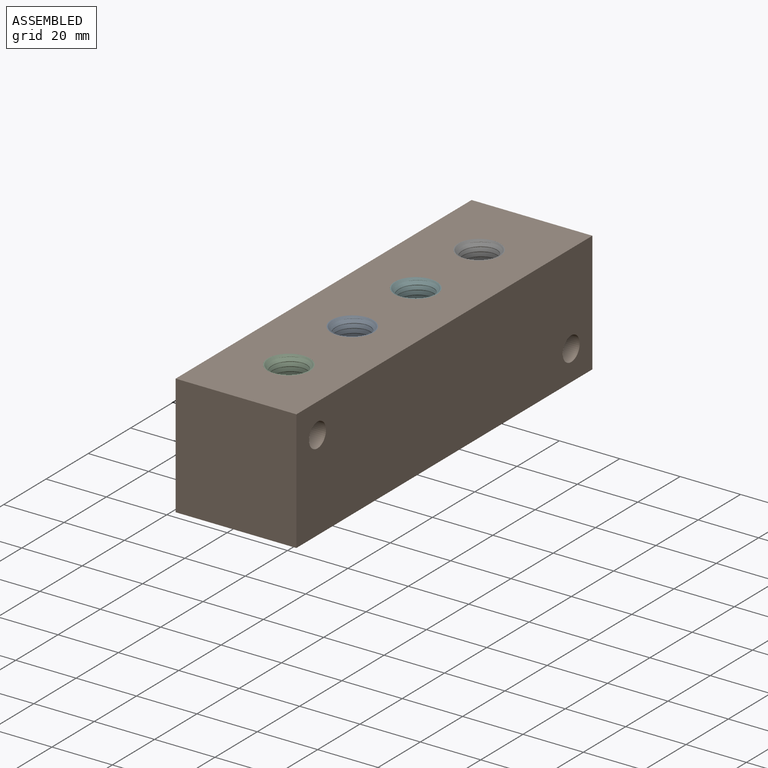
[diagram: assembled view]
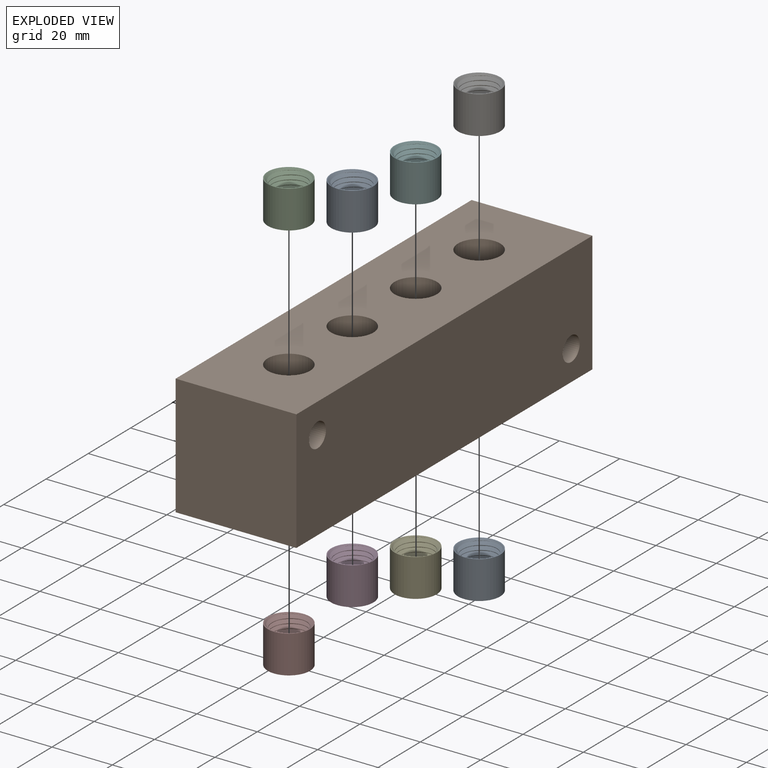
[diagram: exploded view]
GUIDED TOUR — MATED ASSEMBLY (Onshape document 51464a541ba9c10fd1314c73, AutoMate assembly 51464a541ba9c10fd1314c73_e3d22d9eac431a9dcffcccdf_4a49ec440293bae563754493_default)

This assembly has 9 components, labeled P0..P8 below (a component is one placed occurrence of a part; the same part can appear more than once), held together by 8 mates. A mate is a constraint between two components; its type names the relative motion it leaves free:
  CYLINDRICAL — leaves both rotation about and translation along the listed axis free.
Axis/direction vectors are unit vectors and 'through' points are millimeter coordinates, both in the assembly's world frame.

MATES
  1. CYLINDRICAL "Cylindrical 3": P1 <-> P3, axis (0.000, 0.000, -1.000) through (-0.03, -15.01, -19.99) mm
  2. CYLINDRICAL "Cylindrical 2": P1 <-> P4, axis (0.000, 0.000, -1.000) through (-0.03, 14.99, -19.99) mm
  3. CYLINDRICAL "Cylindrical 1": P1 <-> P0, axis (0.000, 0.000, -1.000) through (-0.03, 44.99, -19.99) mm
  4. CYLINDRICAL "Cylindrical 7": P5 <-> P1, axis (0.000, 0.000, 1.000) through (-0.03, 14.99, 20.01) mm
  5. CYLINDRICAL "Cylindrical 6": P8 <-> P1, axis (0.000, 0.000, 1.000) through (-0.03, -15.01, 20.01) mm
  6. CYLINDRICAL "Cylindrical 4": P7 <-> P1, axis (0.000, 0.000, -1.000) through (-0.03, -45.01, -19.99) mm
  7. CYLINDRICAL "Cylindrical 5": P2 <-> P1, axis (0.000, 0.000, 1.000) through (-0.03, -45.01, 20.01) mm
  8. CYLINDRICAL "Cylindrical 8": P6 <-> P1, axis (0.000, 0.000, 1.000) through (-0.03, 44.99, 20.01) mm

ASSEMBLY ORDER
  1. P1 — the base component [order heuristic]
  2. P0 [order heuristic]
  3. P2 [order heuristic]
  4. P3 [order heuristic]
  5. P4 [order heuristic]
  6. P5 [order heuristic]
  7. P6 [order heuristic]
  8. P7 [order heuristic]
  9. P8 [order heuristic]
Order-tag legend:
  [order heuristic] — this assembly is geometrically interlocked (no collision-free removal order exists), so components are listed in mate-graph order; insertion feasibility is not verified.

Of the 9 components, 1 carries the full construction recipe — the FeatureScript program that regenerates the part's solid from scratch; the rest are supplied as boundary geometry only.
Each toured component is shown spotlighted twice — in the assembled view, then in the exploded view, where a leader line traces a displaced component back to its assembled socket (saturated green if recipe-attached, orange if geometry-only; every other component desaturated gray) — followed by its recipe or geometry summary and the mates that hold it.
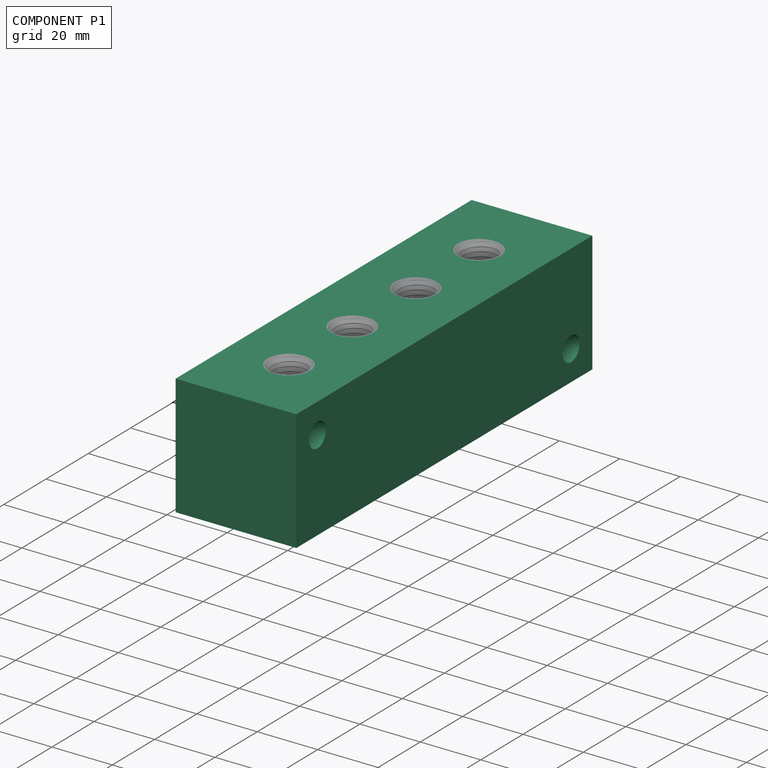
[diagram: component P1 — assembled]
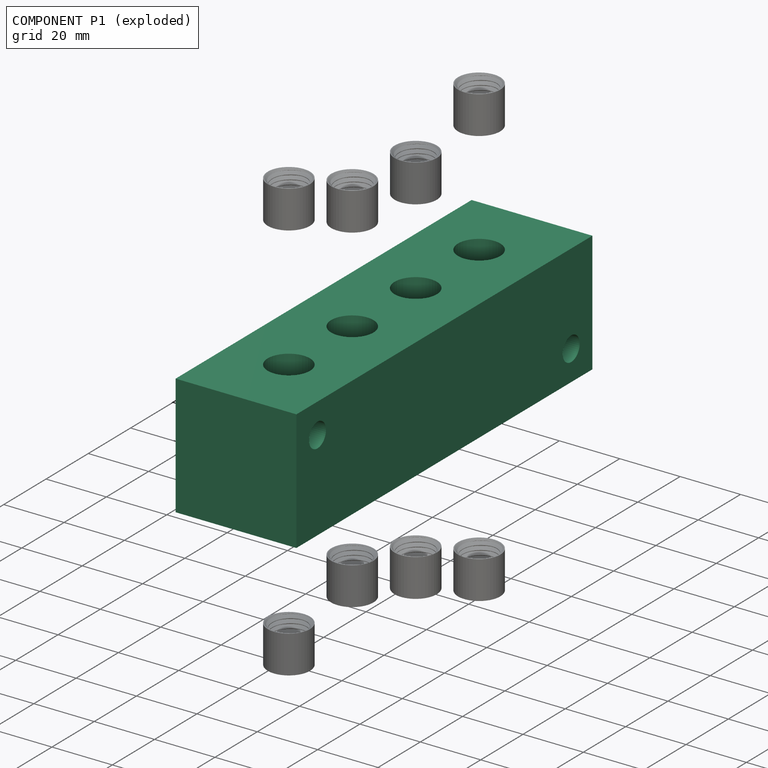
[diagram: component P1 — exploded]
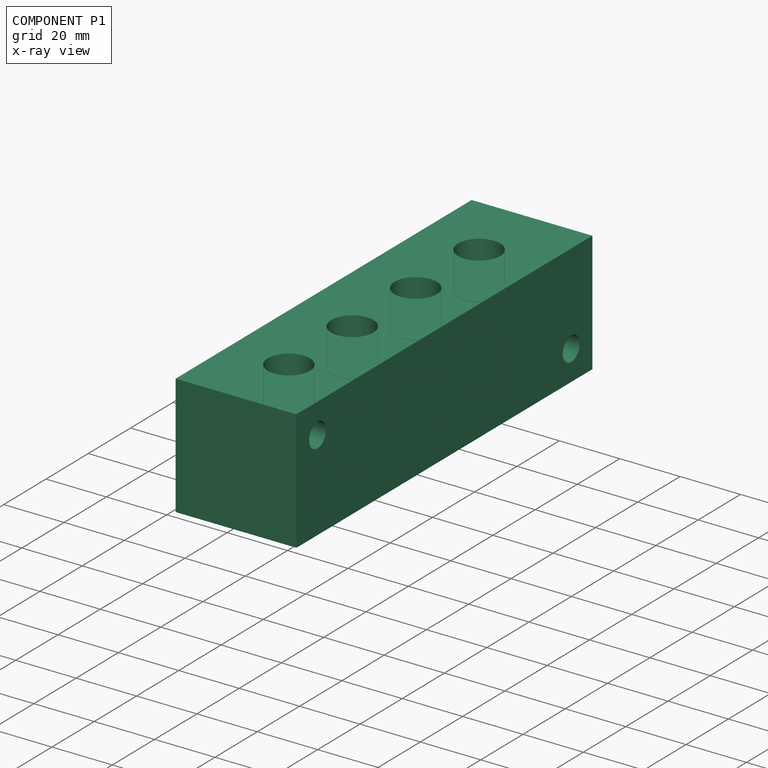
[diagram: component P1 — x-ray view]
COMPONENT P1 — recipe-attached (CADFS 00799438, mesh-verified: the recipe's output STEP matches this component's geometry to below the mesh-comparison resolution (tessellation chordal tolerance ~0.226 mm)).
Held by: CYLINDRICAL mate "Cylindrical 3" to P3; CYLINDRICAL mate "Cylindrical 2" to P4; CYLINDRICAL mate "Cylindrical 1" to P0; CYLINDRICAL mate "Cylindrical 7" to P5; CYLINDRICAL mate "Cylindrical 6" to P8; CYLINDRICAL mate "Cylindrical 4" to P7; CYLINDRICAL mate "Cylindrical 5" to P2; CYLINDRICAL mate "Cylindrical 8" to P6.
Construction recipe (FeatureScript — the CAD program that rebuilds this solid; sketch coordinates are in the units given by the * unit suffixes, e.g. mm):

FeatureScript 1511;
import(path : "onshape/std/geometry.fs", version : "1511.0");
import(path : "onshape/std/common.fs", version : "1511.0");
const mm = millimeter;
const VERTEX = EntityType.VERTEX;
const EDGE = EntityType.EDGE;
const FACE = EntityType.FACE;
const BODY = EntityType.BODY;
function v(x, y){return vector(x, y);}
function OD(order){return orderDisambiguation(order);}
function OSD(set){return originalSetDisambiguation(set);}
function TD(topology){return topologyDisambiguation(topology);}
function TDD(query){return trueDependencyDisambiguation(query);}
function sQuery(a, b, c) {return sketchEntityQuery(a, b, c);}

annotation { "Feature Type Name" : "Feature", "Feature Type Description" : "" }
export const myFeature = defineFeature(function(context is Context, id is Id, definition is map)
    precondition{}
    {
        {
            var Q0;
            Q0=qCreatedBy(makeId("Front.planeOp"),FACE);
            var sketch = newSketch(context, id + "F0", { "sketchPlane" : qUnion([Q0])});
            skLineSegment(sketch, "E0.bottom", {"start": v(20, 20) * mm, "end": v(-20, 20) * mm});
            skLineSegment(sketch, "E0.top", {"start": v(20, -20) * mm, "end": v(-20, -20) * mm});
            skLineSegment(sketch, "E0.left", {"start": v(20, 20) * mm, "end": v(20, -20) * mm});
            skLineSegment(sketch, "E0.right", {"start": v(-20, 20) * mm, "end": v(-20, -20) * mm});
            skPoint(sketch, "E0.middle", {"position": v(0, 0) * mm});
            skSolve(sketch);
        }
        {
            var Q0;
            Q0=makeQuery(id+"F0.imprint","IMPRINT",FACE,{"disambiguationData":[TD([[makeQuery(id+"F0.imprint","IMPRINT",EDGE,{"derivedFrom":sQuery(id+"F0.wireOp",EDGE,"E0.bottom")}),1.0]])]});
            extrude(context, id + "F1", {"entities" : qUnion([Q0]), "depth" : 140 * mm, "offsetDistance" : 25 * mm});
        }
        {
            var Q0;
            Q0=makeQuery(id+"F1.opExtrude","SWEPT_FACE",FACE,{"disambiguationData":[OSD([sQuery(id+"F0.wireOp",EDGE,"E0.bottom")])]});
            var sketch = newSketch(context, id + "F2", { "sketchPlane" : qUnion([Q0])});
            skLineSegment(sketch, "E1", {"start": v(0, -140) * mm, "end": v(0, 0) * mm, "construction": true});
            skCircle(sketch, "E2", {"center": v(0, -25) * mm, "radius": 5.7 * mm});
            skCircle(sketch, "E3", {"center": v(0, -55) * mm, "radius": 5.7 * mm});
            skCircle(sketch, "E4", {"center": v(0, -85) * mm, "radius": 5.7 * mm});
            skCircle(sketch, "E5", {"center": v(0, -115) * mm, "radius": 5.7 * mm});
            skSolve(sketch);
        }
        {
            var Q0;
            Q0=makeQuery(id+"F2.imprint","IMPRINT",FACE,{"disambiguationData":[TD([[makeQuery(id+"F2.imprint","IMPRINT",EDGE,{"derivedFrom":sQuery(id+"F2.wireOp",EDGE,"E3")}),1.0]])]});
            var Q1;
            Q1=makeQuery(id+"F2.imprint","IMPRINT",FACE,{"disambiguationData":[TD([[makeQuery(id+"F2.imprint","IMPRINT",EDGE,{"derivedFrom":sQuery(id+"F2.wireOp",EDGE,"E4")}),1.0]])]});
            var Q2;
            Q2=makeQuery(id+"F2.imprint","IMPRINT",FACE,{"disambiguationData":[TD([[makeQuery(id+"F2.imprint","IMPRINT",EDGE,{"derivedFrom":sQuery(id+"F2.wireOp",EDGE,"E5")}),1.0]])]});
            var Q3;
            Q3=makeQuery(id+"F2.imprint","IMPRINT",FACE,{"disambiguationData":[TD([[makeQuery(id+"F2.imprint","IMPRINT",EDGE,{"derivedFrom":sQuery(id+"F2.wireOp",EDGE,"E2")}),1.0]])]});
            extrude(context, id + "F3", {"entities" : qUnion([Q0, Q1, Q2, Q3]), "operationType" : NewBodyOperationType.REMOVE, "oppositeDirection" : true, "depth" : 40 * mm, "offsetDistance" : 25 * mm});
        }
        {
            var Q0;
            Q0=makeQuery(id+"F1.opExtrude","SWEPT_FACE",FACE,{"disambiguationData":[OSD([sQuery(id+"F0.wireOp",EDGE,"E0.left")])]});
            var sketch = newSketch(context, id + "F4", { "sketchPlane" : qUnion([Q0])});
            skCircle(sketch, "E6", {"center": v(-130, 10) * mm, "radius": 4 * mm});
            skCircle(sketch, "E7", {"center": v(-10, -10) * mm, "radius": 4 * mm});
            skSolve(sketch);
        }
        {
            var Q0;
            Q0 = qSketchRegion(id + "F4", true);
            extrude(context, id + "F5", {"entities" : qUnion([Q0]), "operationType" : NewBodyOperationType.REMOVE, "oppositeDirection" : true, "depth" : 40 * mm, "offsetDistance" : 25 * mm});
        }
        {
            var Q0;
            Q0=makeQuery(id+"F1.opExtrude","SWEPT_FACE",FACE,{"disambiguationData":[OSD([sQuery(id+"F0.wireOp",EDGE,"E0.top")])]});
            var sketch = newSketch(context, id + "F6", { "sketchPlane" : qUnion([Q0])});
            skCircle(sketch, "E8", {"center": v(0, 115) * mm, "radius": 7 * mm});
            skCircle(sketch, "E9", {"center": v(0, 85) * mm, "radius": 7 * mm});
            skCircle(sketch, "E10", {"center": v(0, 55) * mm, "radius": 7 * mm});
            skCircle(sketch, "E11", {"center": v(0, 25) * mm, "radius": 7 * mm});
            skSolve(sketch);
        }
        {
            var Q0;
            Q0=makeQuery(id+"F6.imprint","IMPRINT",FACE,{"disambiguationData":[TD([[makeQuery(id+"F6.imprint","IMPRINT",EDGE,{"derivedFrom":sQuery(id+"F6.wireOp",EDGE,"E8")}),1.0]])]});
            var Q1;
            Q1=makeQuery(id+"F6.imprint","IMPRINT",FACE,{"disambiguationData":[TD([[makeQuery(id+"F6.imprint","IMPRINT",EDGE,{"derivedFrom":sQuery(id+"F6.wireOp",EDGE,"E9")}),1.0]])]});
            var Q2;
            Q2=makeQuery(id+"F6.imprint","IMPRINT",FACE,{"disambiguationData":[TD([[makeQuery(id+"F6.imprint","IMPRINT",EDGE,{"derivedFrom":sQuery(id+"F6.wireOp",EDGE,"E10")}),1.0]])]});
            var Q3;
            Q3=makeQuery(id+"F6.imprint","IMPRINT",FACE,{"disambiguationData":[TD([[makeQuery(id+"F6.imprint","IMPRINT",EDGE,{"derivedFrom":sQuery(id+"F6.wireOp",EDGE,"E11")}),1.0]])]});
            extrude(context, id + "F7", {"entities" : qUnion([Q0, Q1, Q2, Q3]), "operationType" : NewBodyOperationType.REMOVE, "oppositeDirection" : true, "depth" : 12.5 * mm, "offsetDistance" : 25 * mm});
        }
        {
            var Q0;
            Q0=makeQuery(id+"F1.opExtrude","SWEPT_FACE",FACE,{"disambiguationData":[OSD([sQuery(id+"F0.wireOp",EDGE,"E0.bottom")])]});
            var sketch = newSketch(context, id + "F8", { "sketchPlane" : qUnion([Q0])});
            skCircle(sketch, "E12", {"center": v(0, -25) * mm, "radius": 7 * mm});
            skCircle(sketch, "E13", {"center": v(0, -55) * mm, "radius": 7 * mm});
            skCircle(sketch, "E14", {"center": v(0, -85) * mm, "radius": 7 * mm});
            skCircle(sketch, "E15", {"center": v(0, -115) * mm, "radius": 7 * mm});
            skSolve(sketch);
        }
        {
            var Q0;
            Q0=makeQuery(id+"F8.imprint","IMPRINT",FACE,{"disambiguationData":[TD([[makeQuery(id+"F8.imprint","IMPRINT",EDGE,{"derivedFrom":sQuery(id+"F8.wireOp",EDGE,"E12")}),1.0]])]});
            var Q1;
            Q1=makeQuery(id+"F8.imprint","IMPRINT",FACE,{"disambiguationData":[TD([[makeQuery(id+"F8.imprint","IMPRINT",EDGE,{"derivedFrom":sQuery(id+"F8.wireOp",EDGE,"E13")}),1.0]])]});
            var Q2;
            Q2=makeQuery(id+"F8.imprint","IMPRINT",FACE,{"disambiguationData":[TD([[makeQuery(id+"F8.imprint","IMPRINT",EDGE,{"derivedFrom":sQuery(id+"F8.wireOp",EDGE,"E14")}),1.0]])]});
            var Q3;
            Q3=makeQuery(id+"F8.imprint","IMPRINT",FACE,{"disambiguationData":[TD([[makeQuery(id+"F8.imprint","IMPRINT",EDGE,{"derivedFrom":sQuery(id+"F8.wireOp",EDGE,"E15")}),1.0]])]});
            extrude(context, id + "F9", {"entities" : qUnion([Q0, Q1, Q2, Q3]), "operationType" : NewBodyOperationType.REMOVE, "oppositeDirection" : true, "depth" : 12.5 * mm, "offsetDistance" : 25 * mm});
        }
    });
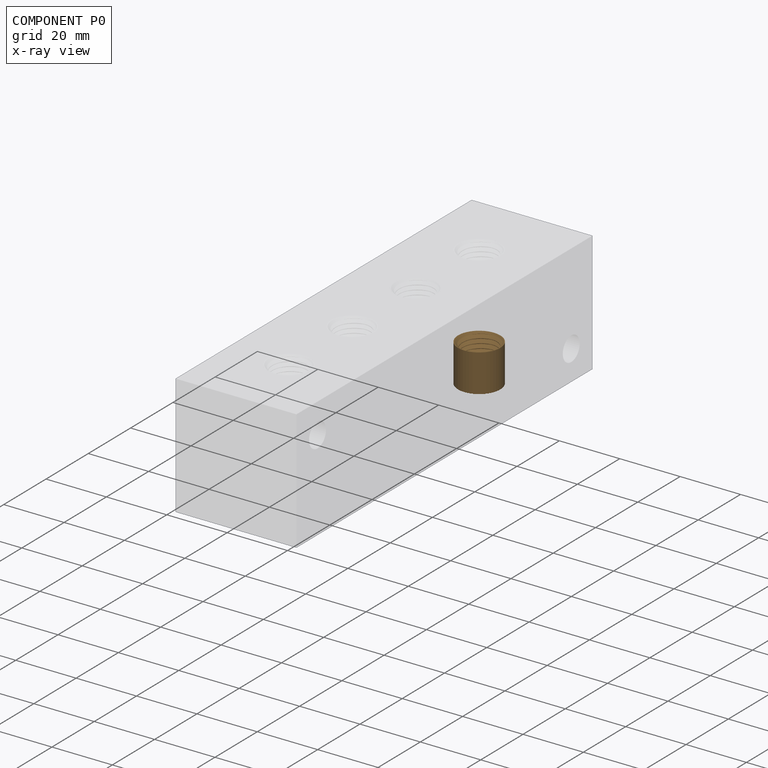
[diagram: component P0 — x-ray view]
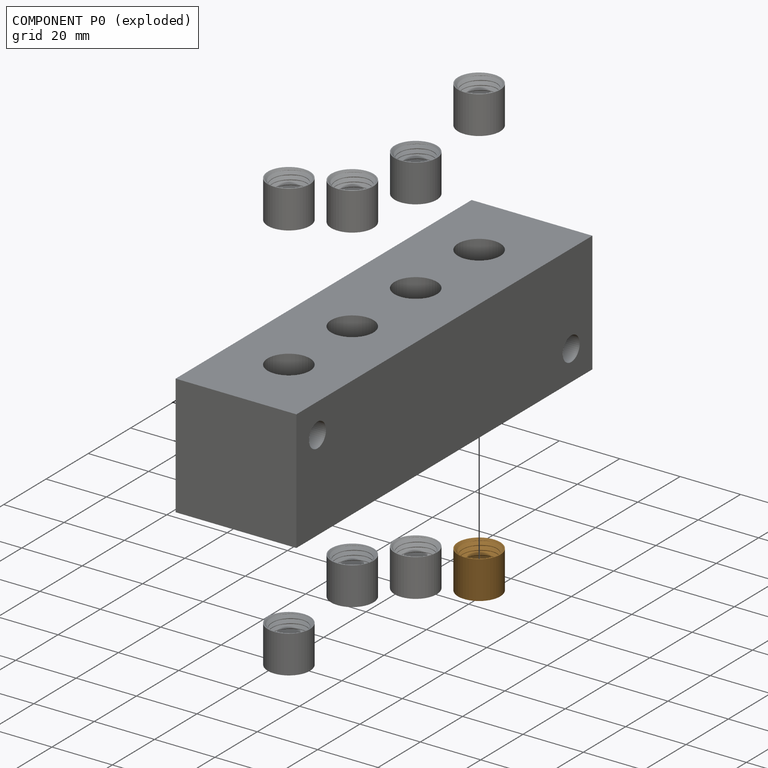
[diagram: component P0 — exploded]
COMPONENT P0 — geometry summary (no construction recipe available for this part):
  bounding box: 16.1 x 14.1 x 14.0 mm
  B-rep topology: 1 solid, 8 faces, 36 edges
  volume: 364 mm^3 (11% of its bounding box)
Held by: CYLINDRICAL mate "Cylindrical 1" to P1.
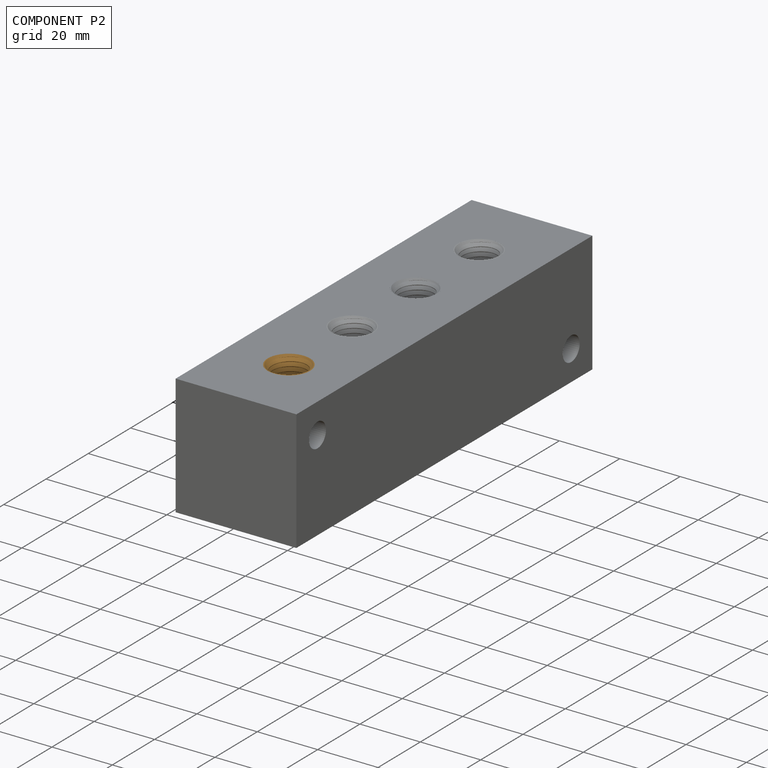
[diagram: component P2 — assembled]
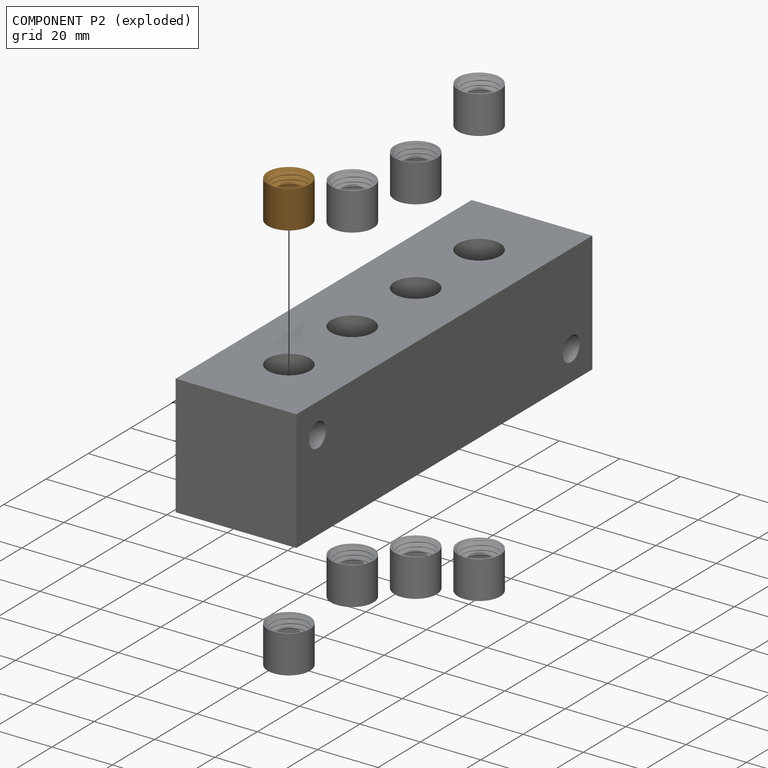
[diagram: component P2 — exploded]
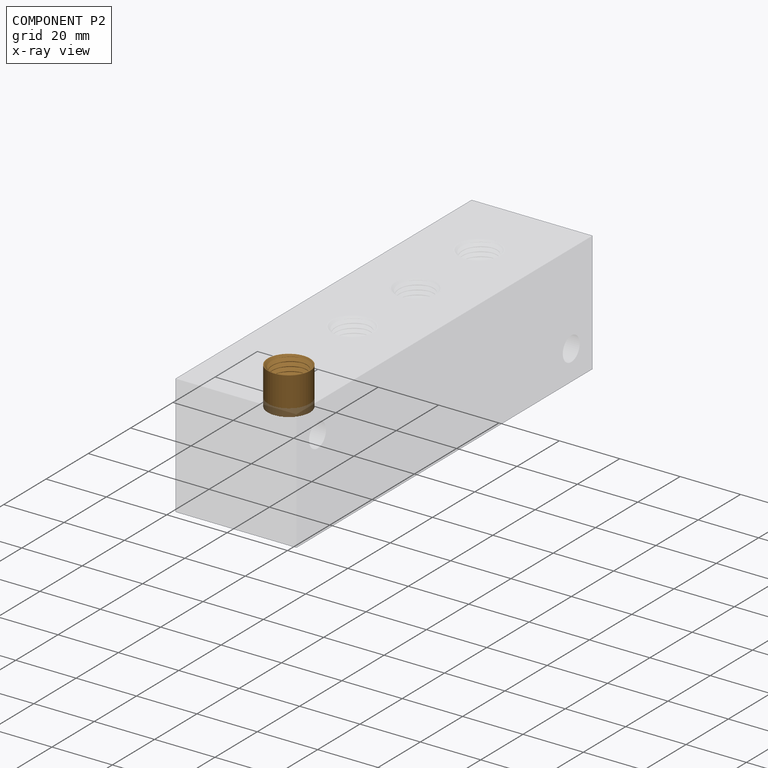
[diagram: component P2 — x-ray view]
COMPONENT P2 — geometry summary (no construction recipe available for this part):
  bounding box: 16.1 x 14.1 x 14.0 mm
  B-rep topology: 1 solid, 8 faces, 36 edges
  volume: 364 mm^3 (11% of its bounding box)
Held by: CYLINDRICAL mate "Cylindrical 5" to P1.
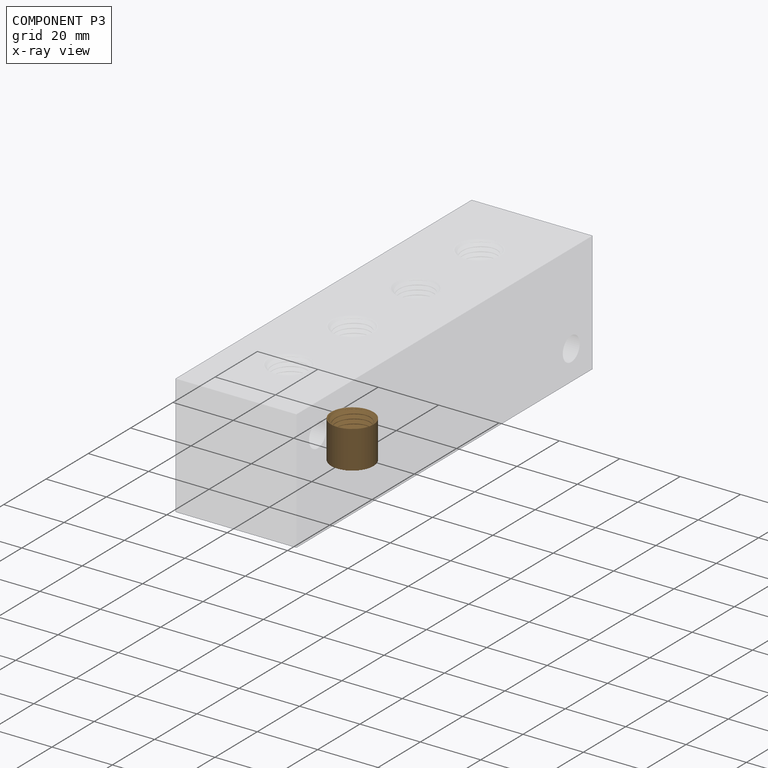
[diagram: component P3 — x-ray view]
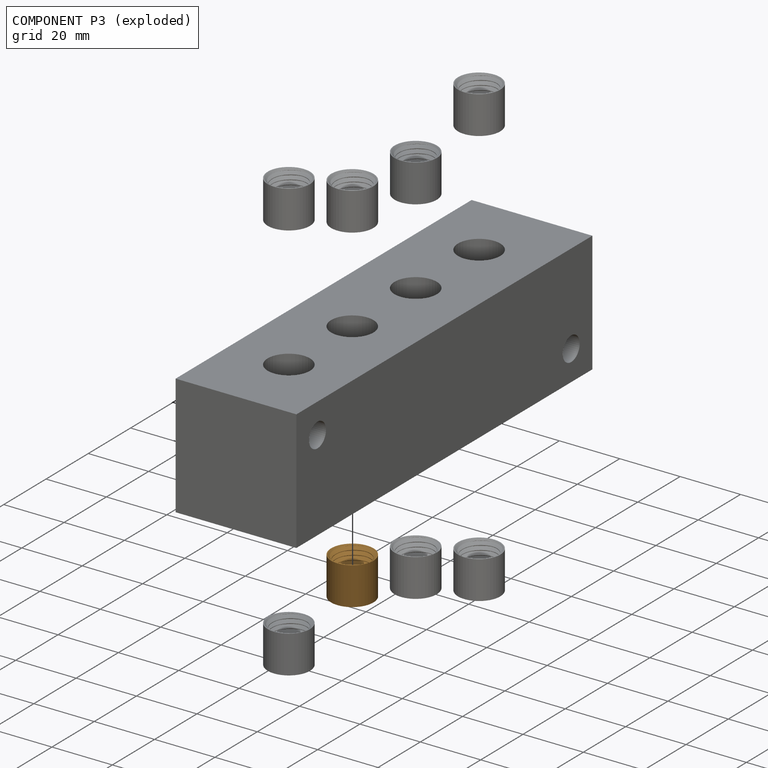
[diagram: component P3 — exploded]
COMPONENT P3 — geometry summary (no construction recipe available for this part):
  bounding box: 16.1 x 14.1 x 14.0 mm
  B-rep topology: 1 solid, 8 faces, 36 edges
  volume: 364 mm^3 (11% of its bounding box)
Held by: CYLINDRICAL mate "Cylindrical 3" to P1.
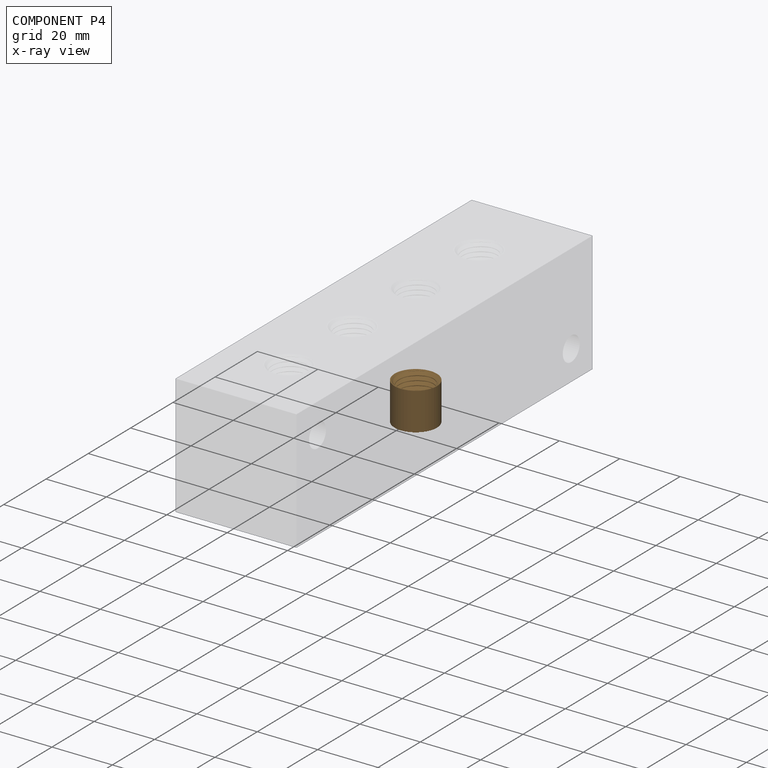
[diagram: component P4 — x-ray view]
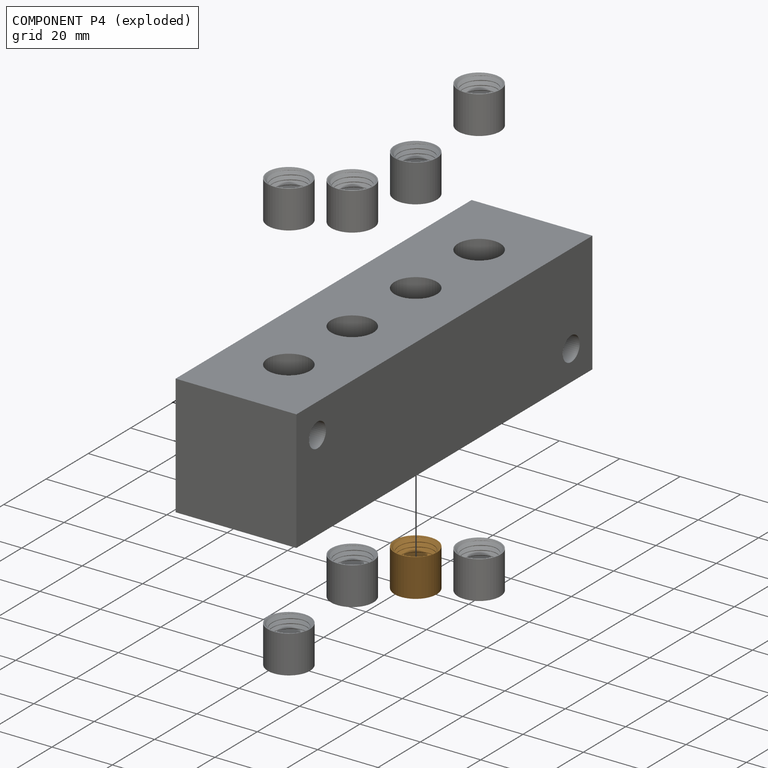
[diagram: component P4 — exploded]
COMPONENT P4 — geometry summary (no construction recipe available for this part):
  bounding box: 16.1 x 14.1 x 14.0 mm
  B-rep topology: 1 solid, 8 faces, 36 edges
  volume: 364 mm^3 (11% of its bounding box)
Held by: CYLINDRICAL mate "Cylindrical 2" to P1.
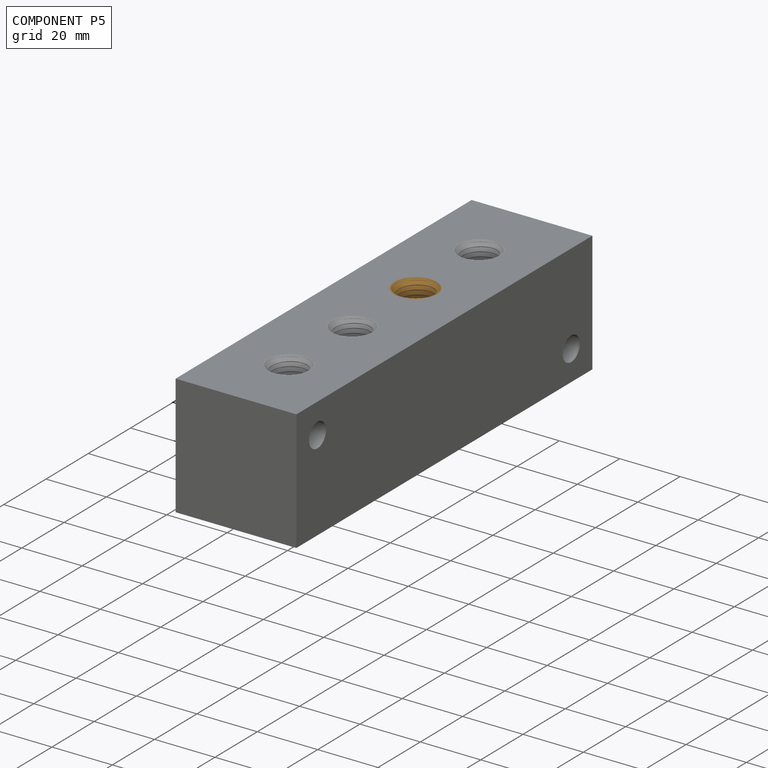
[diagram: component P5 — assembled]
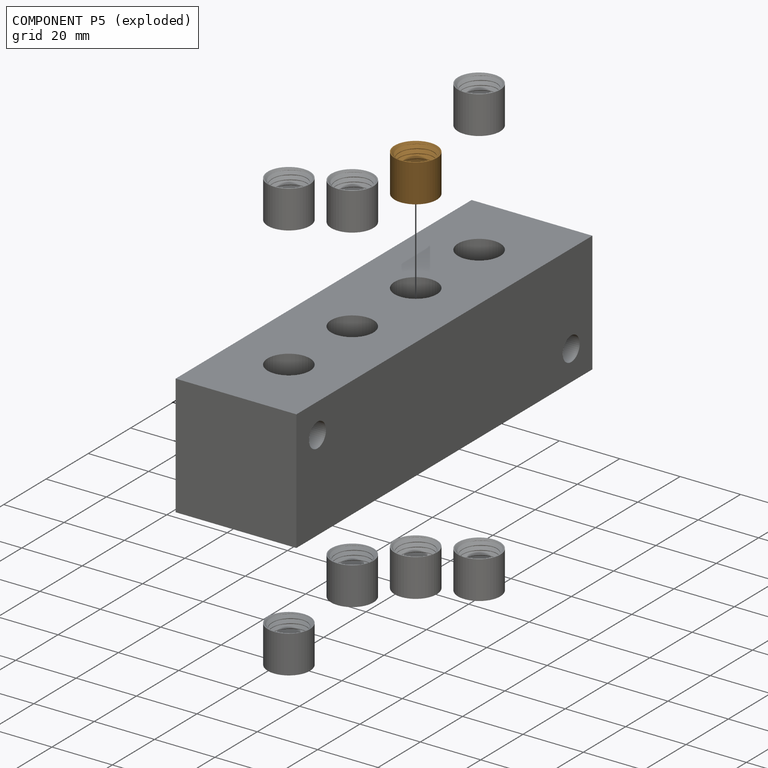
[diagram: component P5 — exploded]
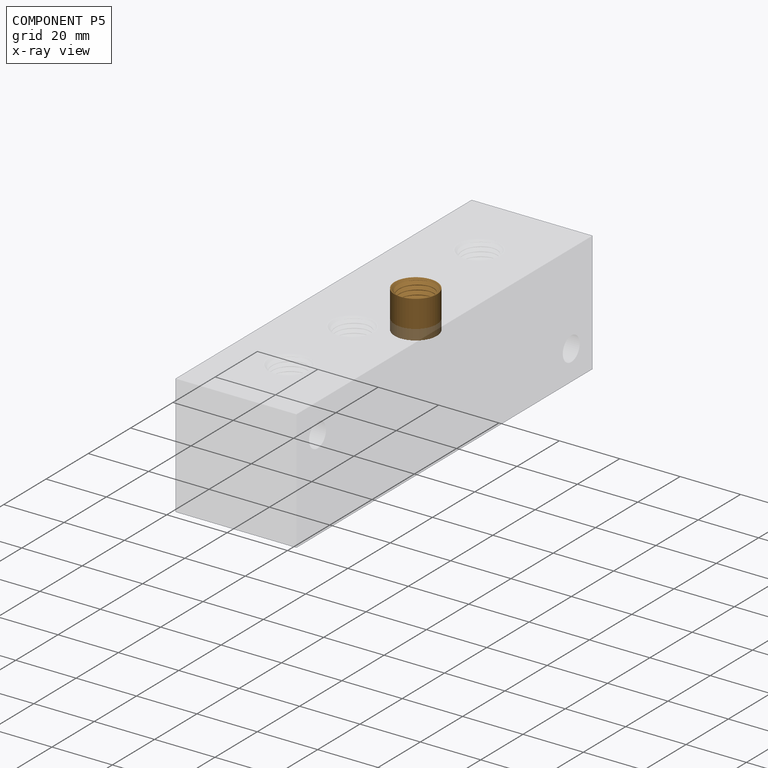
[diagram: component P5 — x-ray view]
COMPONENT P5 — geometry summary (no construction recipe available for this part):
  bounding box: 16.1 x 14.1 x 14.0 mm
  B-rep topology: 1 solid, 8 faces, 36 edges
  volume: 364 mm^3 (11% of its bounding box)
Held by: CYLINDRICAL mate "Cylindrical 7" to P1.
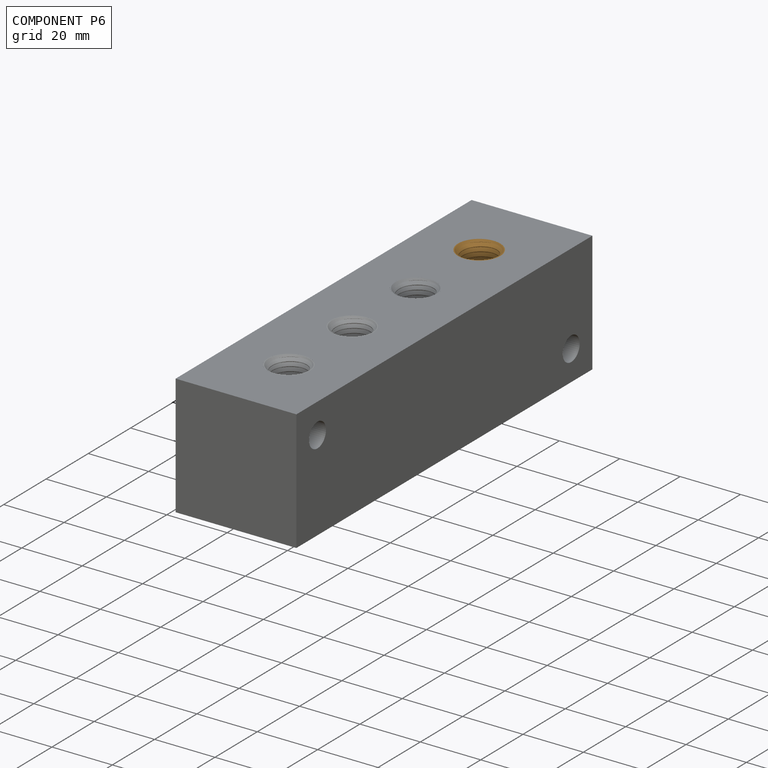
[diagram: component P6 — assembled]
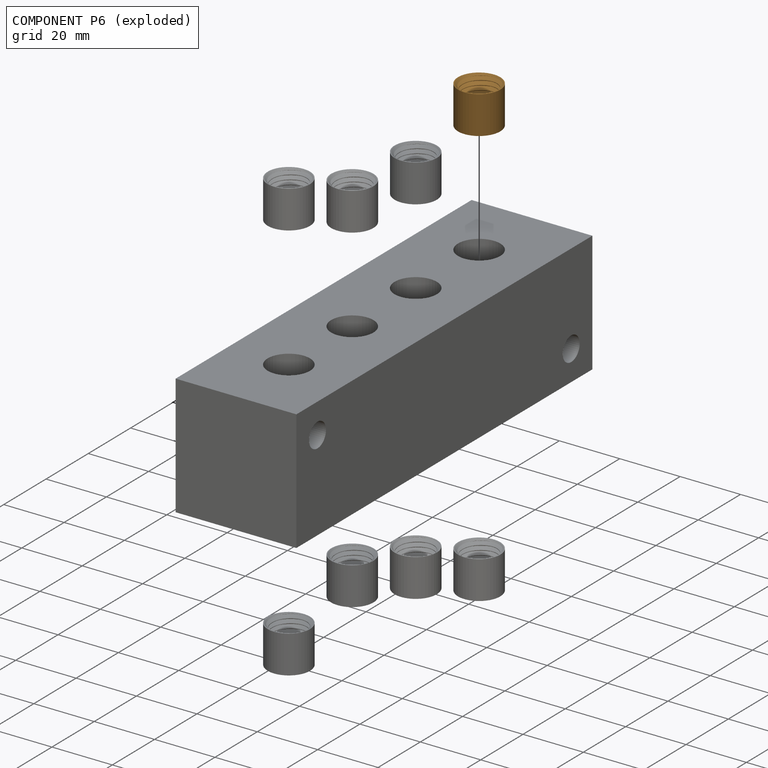
[diagram: component P6 — exploded]
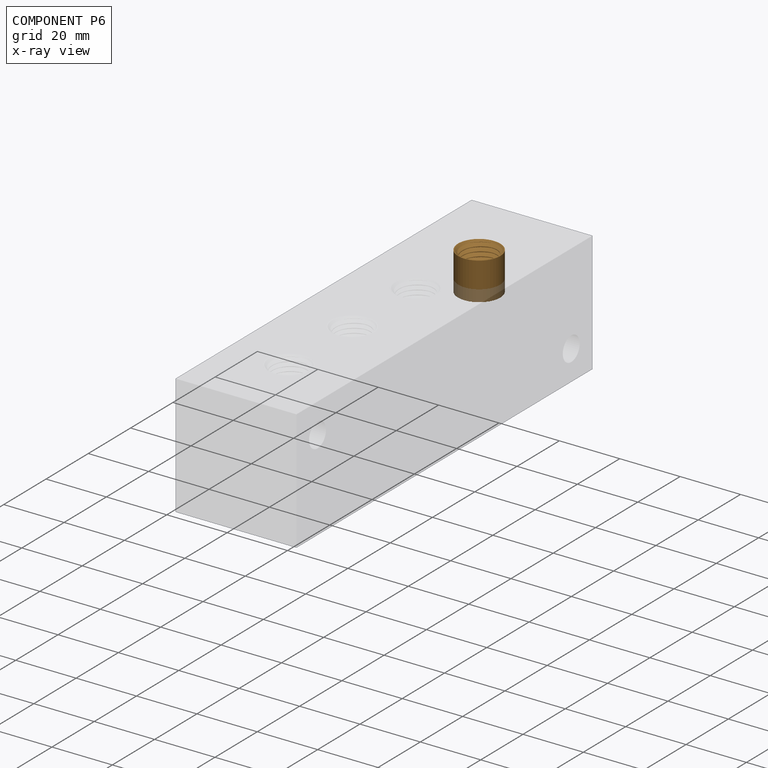
[diagram: component P6 — x-ray view]
COMPONENT P6 — geometry summary (no construction recipe available for this part):
  bounding box: 16.1 x 14.1 x 14.0 mm
  B-rep topology: 1 solid, 8 faces, 36 edges
  volume: 364 mm^3 (11% of its bounding box)
Held by: CYLINDRICAL mate "Cylindrical 8" to P1.
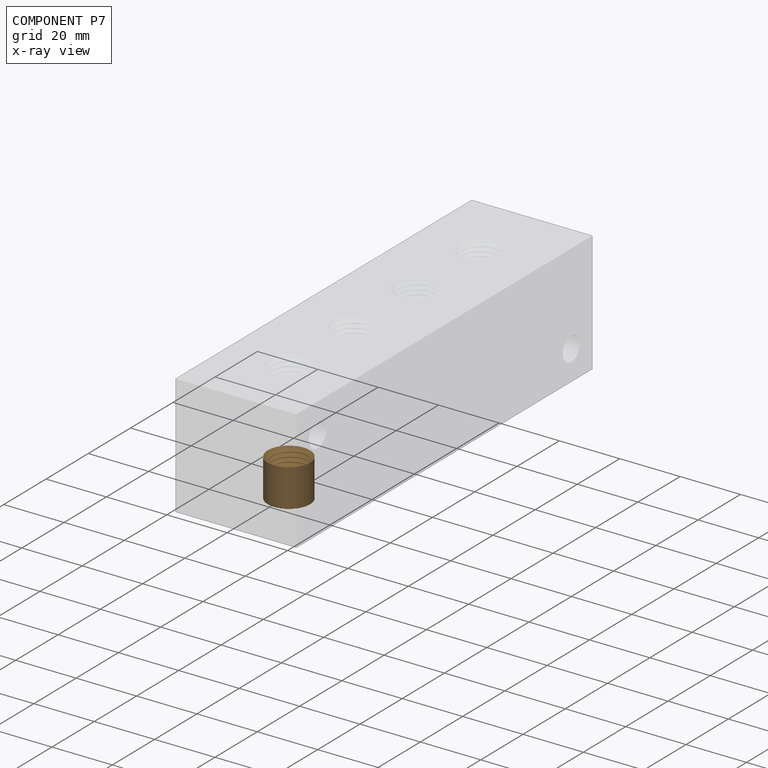
[diagram: component P7 — x-ray view]
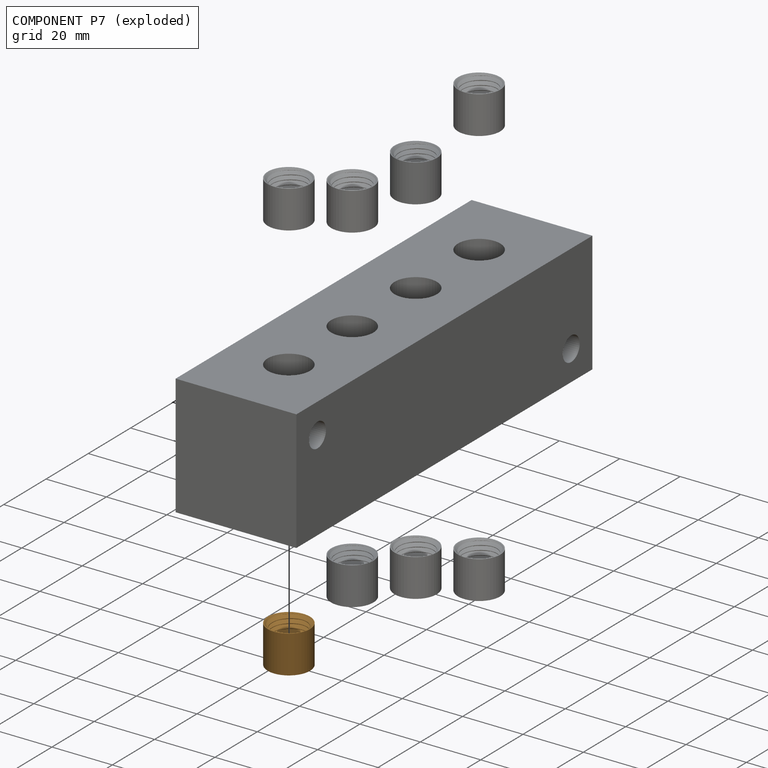
[diagram: component P7 — exploded]
COMPONENT P7 — geometry summary (no construction recipe available for this part):
  bounding box: 16.1 x 14.1 x 14.0 mm
  B-rep topology: 1 solid, 8 faces, 36 edges
  volume: 364 mm^3 (11% of its bounding box)
Held by: CYLINDRICAL mate "Cylindrical 4" to P1.
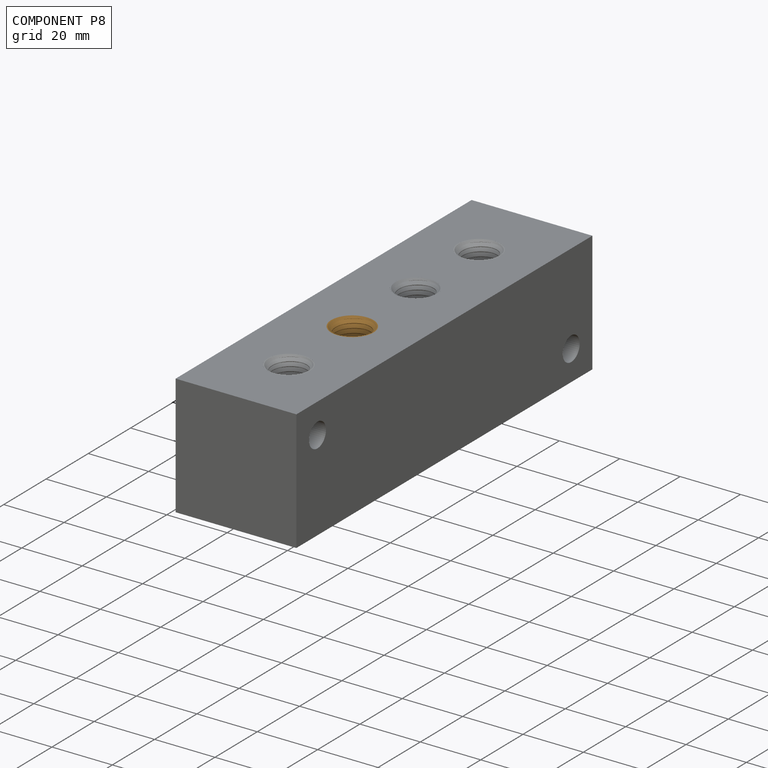
[diagram: component P8 — assembled]
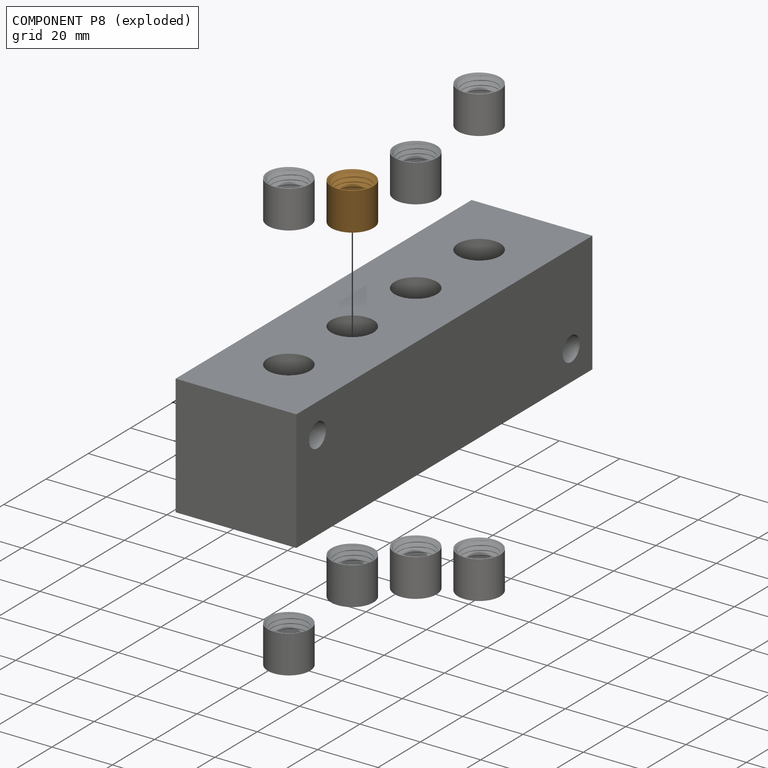
[diagram: component P8 — exploded]
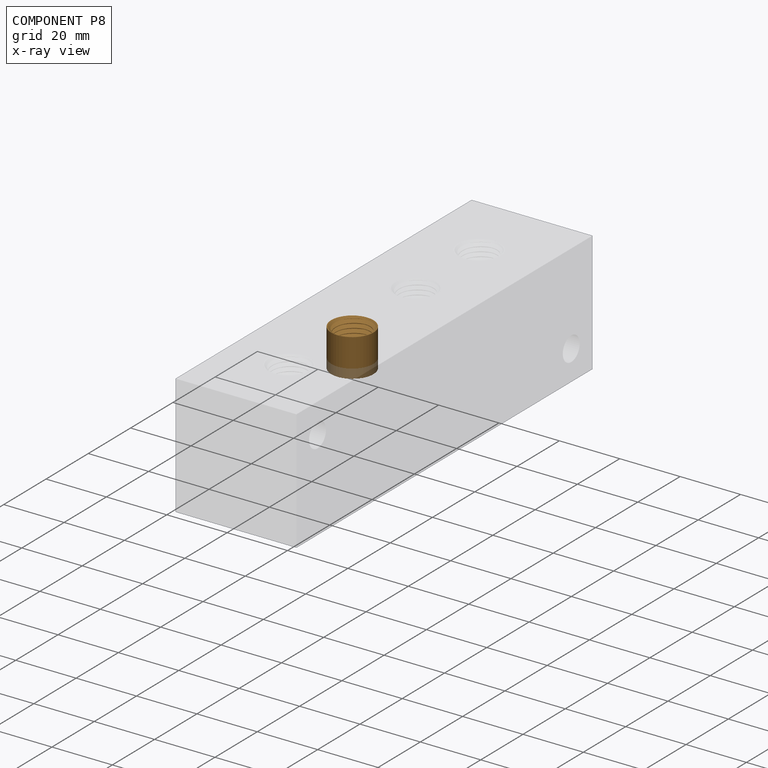
[diagram: component P8 — x-ray view]
COMPONENT P8 — geometry summary (no construction recipe available for this part):
  bounding box: 16.1 x 14.1 x 14.0 mm
  B-rep topology: 1 solid, 8 faces, 36 edges
  volume: 364 mm^3 (11% of its bounding box)
Held by: CYLINDRICAL mate "Cylindrical 6" to P1.
PROVENANCE & LICENSES
Assembly (occurrences, transforms, mates, per-part STEP geometry): AutoMate dataset, Zenodo record 7776208, CC0.
Construction recipes: CADFS (HuggingFace VladPyatov/CADFS, CC-BY-4.0, layered over the ABC dataset), FeatureScript reconstruction programs keyed by ABC model id.
Join: ABC meta listings map ABC model id -> Onshape documentId; within a shared document, parts are matched by geometric signature (bounding-box dims + volume at 0.1% relative tolerance, exact B-rep face/solid counts).
Verification: 1 of this assembly's 9 components carries a recipe attachment, and every attachment is mesh-verified: the CADFS STEP and the AutoMate member STEP were compared as meshes in their shared local frame (symmetric sampled-point-to-mesh distance); worst across the 1 attachment: below the mesh-comparison resolution (tessellation chordal tolerance ~0.226 mm) on a 151 mm part.
Renders: orthographic iso camera (az 35 / el 25); the floor grid conveys scale (grid pitch printed in each image; no ruler). In the exploded view each component is displaced by its stored offset vector: the offsets alone carry the explosion direction (mate normal/axis signs are not orientation cues and do not encode it), and separation distances are assigned per mate-chain, not proportionally to assembly-order depth.
